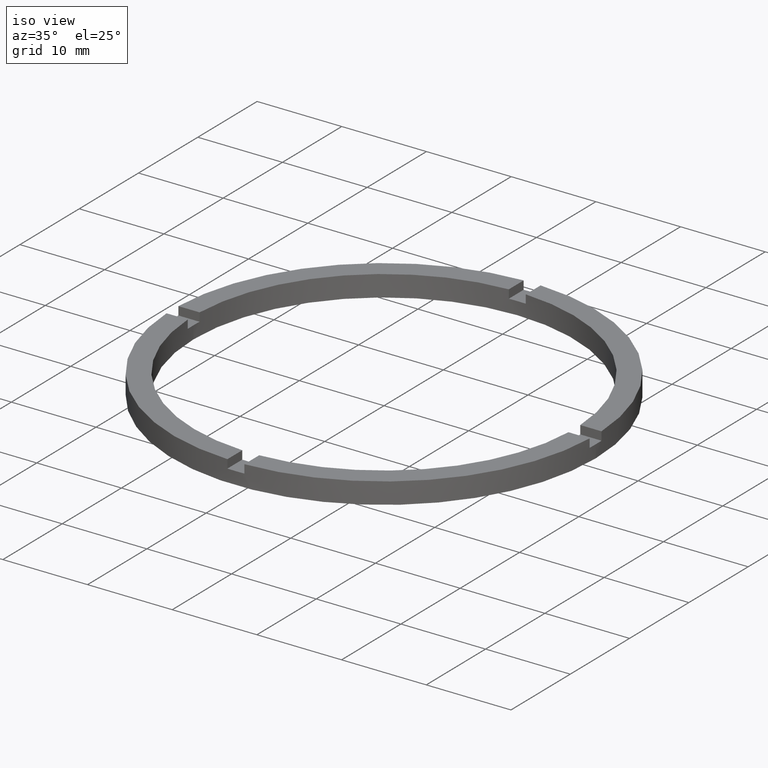
[diagram: clean part render]
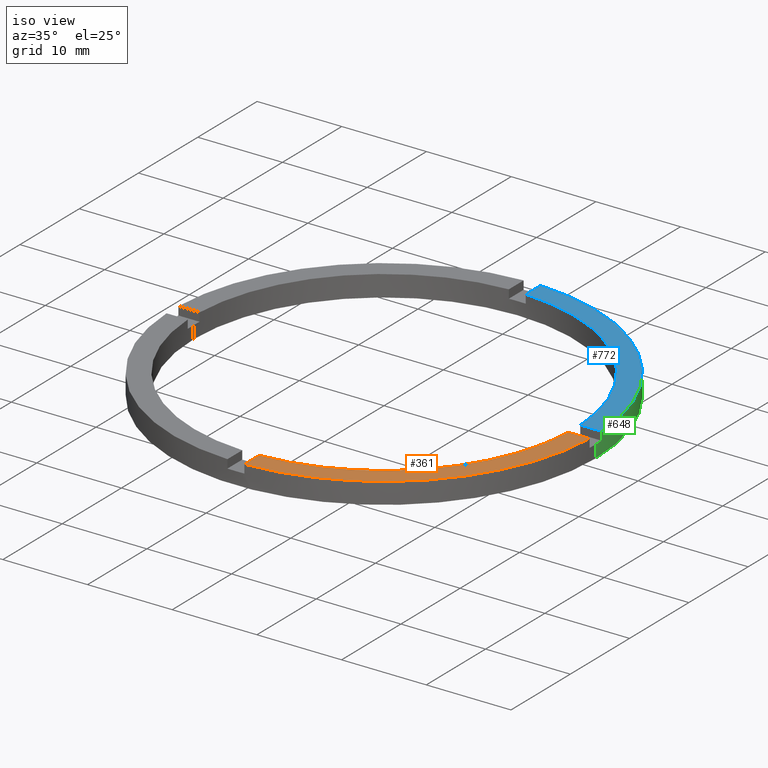
[diagram: same view with three faces highlighted in distinct colors, each labeled with its STEP entity id]
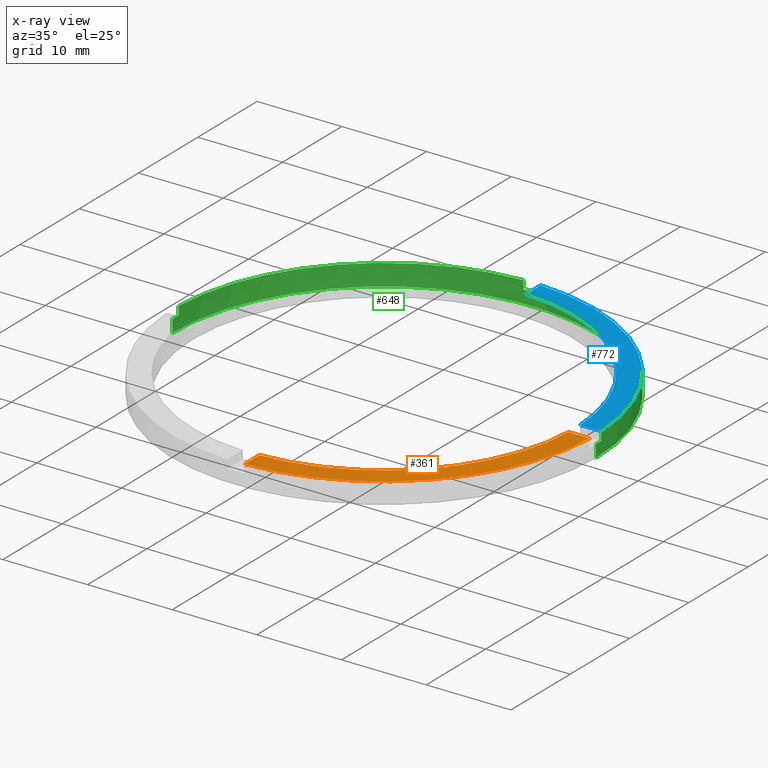
[diagram: x-ray of the same camera — body ghosted, the three highlighted faces saturated]
A machine part, iso view with three faces highlighted in distinct colors.
The next image is the same camera in x-ray (body ghosted, the three faces saturated) — at least one of them is partly hidden behind the body in this view.
Their STEP definitions:

[orange] entity #361 — the highlighted planar face has unit normal (0, 0, 1).
#4 = EDGE_CURVE ( 'NONE', #275, #313, #141, .T. ) ;
#17 = ORIENTED_EDGE ( 'NONE', *, *, #535, .T. ) ;
#25 = EDGE_LOOP ( 'NONE', ( #720, #468, #761, #17 ) ) ;
#80 = AXIS2_PLACEMENT_3D ( 'NONE', #592, #777, #339 ) ;
#129 = CARTESIAN_POINT ( 'NONE',  ( 0.000000000000000000, 0.000000000000000000, 2.500000000000000000 ) ) ;
#141 = LINE ( 'NONE', #577, #660 ) ;
#177 = VERTEX_POINT ( 'NONE', #522 ) ;
#183 = VECTOR ( 'NONE', #382, 1000.000000000000000 ) ;
#187 = CIRCLE ( 'NONE', #80, 22.50000000000000355 ) ;
#215 = FACE_OUTER_BOUND ( 'NONE', #25, .T. ) ;
#245 = PLANE ( 'NONE',  #638 ) ;
#275 = VERTEX_POINT ( 'NONE', #710 ) ;
#281 = DIRECTION ( 'NONE',  ( 1.000000000000000000, 0.000000000000000000, 0.000000000000000000 ) ) ;
#308 = DIRECTION ( 'NONE',  ( 1.000000000000000000, 0.000000000000000000, -0.000000000000000000 ) ) ;
#313 = VERTEX_POINT ( 'NONE', #736 ) ;
#339 = DIRECTION ( 'NONE',  ( 1.000000000000000000, 0.000000000000000000, 0.000000000000000000 ) ) ;
#360 = DIRECTION ( 'NONE',  ( 0.000000000000000000, 0.000000000000000000, 1.000000000000000000 ) ) ;
#361 = ADVANCED_FACE ( 'NONE', ( #215 ), #245, .T. ) ;
#368 = CARTESIAN_POINT ( 'NONE',  ( 22.47776679298901925, -1.000000000000157652, 2.500000000000000000 ) ) ;
#382 = DIRECTION ( 'NONE',  ( 1.000000000000000000, 4.336808689942018352E-17, 0.000000000000000000 ) ) ;
#461 = DIRECTION ( 'NONE',  ( 0.000000000000000000, 0.000000000000000000, 1.000000000000000000 ) ) ;
#468 = ORIENTED_EDGE ( 'NONE', *, *, #580, .F. ) ;
#512 = EDGE_CURVE ( 'NONE', #762, #177, #703, .T. ) ;
#522 = CARTESIAN_POINT ( 'NONE',  ( 24.97999199359358968, -1.000000000000157430, 2.500000000000000000 ) ) ;
#530 = CARTESIAN_POINT ( 'NONE',  ( 14.99999999999999645, -1.000000000000157874, 2.500000000000000000 ) ) ;
#535 = EDGE_CURVE ( 'NONE', #275, #177, #730, .T. ) ;
#577 = CARTESIAN_POINT ( 'NONE',  ( 0.9999999999998382405, -15.00000000000018119, 2.500000000000000000 ) ) ;
#580 = EDGE_CURVE ( 'NONE', #313, #762, #187, .T. ) ;
#592 = CARTESIAN_POINT ( 'NONE',  ( 0.000000000000000000, 0.000000000000000000, 2.500000000000000000 ) ) ;
#620 = DIRECTION ( 'NONE',  ( -1.301042606982605321E-16, 1.000000000000000000, -0.000000000000000000 ) ) ;
#637 = CARTESIAN_POINT ( 'NONE',  ( 0.000000000000000000, 0.000000000000000000, 2.500000000000000000 ) ) ;
#638 = AXIS2_PLACEMENT_3D ( 'NONE', #129, #360, #308 ) ;
#660 = VECTOR ( 'NONE', #620, 1000.000000000000000 ) ;
#703 = LINE ( 'NONE', #530, #183 ) ;
#710 = CARTESIAN_POINT ( 'NONE',  ( 0.9999999999998395728, -24.97999199359360034, 2.500000000000000000 ) ) ;
#720 = ORIENTED_EDGE ( 'NONE', *, *, #512, .F. ) ;
#730 = CIRCLE ( 'NONE', #778, 25.00000000000000000 ) ;
#736 = CARTESIAN_POINT ( 'NONE',  ( 0.9999999999998391287, -22.47776679298903346, 2.500000000000000000 ) ) ;
#761 = ORIENTED_EDGE ( 'NONE', *, *, #4, .F. ) ;
#762 = VERTEX_POINT ( 'NONE', #368 ) ;
#777 = DIRECTION ( 'NONE',  ( 0.000000000000000000, 0.000000000000000000, 1.000000000000000000 ) ) ;
#778 = AXIS2_PLACEMENT_3D ( 'NONE', #637, #461, #281 ) ;

[blue] entity #772 — the highlighted planar face has unit normal (0, 0, 1).
#16 = PLANE ( 'NONE',  #494 ) ;
#31 = AXIS2_PLACEMENT_3D ( 'NONE', #104, #150, #291 ) ;
#33 = FACE_OUTER_BOUND ( 'NONE', #537, .T. ) ;
#88 = CARTESIAN_POINT ( 'NONE',  ( 22.47776679298903346, 0.9999999999998423483, 2.500000000000000000 ) ) ;
#95 = DIRECTION ( 'NONE',  ( 0.000000000000000000, 1.000000000000000000, 0.000000000000000000 ) ) ;
#103 = EDGE_CURVE ( 'NONE', #769, #491, #394, .T. ) ;
#104 = CARTESIAN_POINT ( 'NONE',  ( 0.000000000000000000, 0.000000000000000000, 2.500000000000000000 ) ) ;
#120 = CARTESIAN_POINT ( 'NONE',  ( 0.9999999999999740208, 15.00000000000000178, 2.500000000000000000 ) ) ;
#128 = DIRECTION ( 'NONE',  ( 1.000000000000000000, 0.000000000000000000, -0.000000000000000000 ) ) ;
#150 = DIRECTION ( 'NONE',  ( 0.000000000000000000, 0.000000000000000000, 1.000000000000000000 ) ) ;
#200 = CARTESIAN_POINT ( 'NONE',  ( 0.000000000000000000, 0.000000000000000000, 2.500000000000000000 ) ) ;
#203 = LINE ( 'NONE', #120, #733 ) ;
#208 = CIRCLE ( 'NONE', #31, 25.00000000000000000 ) ;
#217 = ORIENTED_EDGE ( 'NONE', *, *, #609, .F. ) ;
#246 = DIRECTION ( 'NONE',  ( 0.000000000000000000, 0.000000000000000000, 1.000000000000000000 ) ) ;
#255 = VERTEX_POINT ( 'NONE', #479 ) ;
#268 = ORIENTED_EDGE ( 'NONE', *, *, #103, .F. ) ;
#291 = DIRECTION ( 'NONE',  ( 1.000000000000000000, 0.000000000000000000, 0.000000000000000000 ) ) ;
#302 = CARTESIAN_POINT ( 'NONE',  ( 0.000000000000000000, 0.000000000000000000, 2.500000000000000000 ) ) ;
#311 = DIRECTION ( 'NONE',  ( 1.000000000000000000, 0.000000000000000000, 0.000000000000000000 ) ) ;
#327 = DIRECTION ( 'NONE',  ( -1.000000000000000000, -4.336808689942018352E-17, -0.000000000000000000 ) ) ;
#362 = DIRECTION ( 'NONE',  ( 0.000000000000000000, 0.000000000000000000, 1.000000000000000000 ) ) ;
#379 = CARTESIAN_POINT ( 'NONE',  ( 24.97999199359360034, 0.9999999999998425704, 2.500000000000000000 ) ) ;
#394 = CIRCLE ( 'NONE', #415, 22.50000000000000355 ) ;
#415 = AXIS2_PLACEMENT_3D ( 'NONE', #302, #246, #311 ) ;
#439 = ORIENTED_EDGE ( 'NONE', *, *, #499, .T. ) ;
#448 = VECTOR ( 'NONE', #327, 1000.000000000000000 ) ;
#479 = CARTESIAN_POINT ( 'NONE',  ( 0.9999999999999740208, 24.97999199359359679, 2.500000000000000000 ) ) ;
#491 = VERTEX_POINT ( 'NONE', #599 ) ;
#494 = AXIS2_PLACEMENT_3D ( 'NONE', #200, #362, #128 ) ;
#499 = EDGE_CURVE ( 'NONE', #517, #255, #208, .T. ) ;
#517 = VERTEX_POINT ( 'NONE', #379 ) ;
#537 = EDGE_LOOP ( 'NONE', ( #629, #268, #217, #439 ) ) ;
#599 = CARTESIAN_POINT ( 'NONE',  ( 0.9999999999999740208, 22.47776679298902636, 2.500000000000000000 ) ) ;
#609 = EDGE_CURVE ( 'NONE', #517, #769, #721, .T. ) ;
#624 = EDGE_CURVE ( 'NONE', #491, #255, #203, .T. ) ;
#629 = ORIENTED_EDGE ( 'NONE', *, *, #624, .F. ) ;
#646 = CARTESIAN_POINT ( 'NONE',  ( 14.99999999999999645, 0.9999999999998421263, 2.500000000000000000 ) ) ;
#721 = LINE ( 'NONE', #646, #448 ) ;
#733 = VECTOR ( 'NONE', #95, 1000.000000000000000 ) ;
#769 = VERTEX_POINT ( 'NONE', #88 ) ;
#772 = ADVANCED_FACE ( 'NONE', ( #33 ), #16, .T. ) ;

[green] entity #648 — the highlighted cylindrical surface (partial cylindrical patch) has radius 25 mm, axis along (-0, -0, -1).
#2 = ORIENTED_EDGE ( 'NONE', *, *, #499, .F. ) ;
#8 = CARTESIAN_POINT ( 'NONE',  ( 0.000000000000000000, 0.000000000000000000, 1.500000000000000000 ) ) ;
#19 = VERTEX_POINT ( 'NONE', #697 ) ;
#31 = AXIS2_PLACEMENT_3D ( 'NONE', #104, #150, #291 ) ;
#39 = AXIS2_PLACEMENT_3D ( 'NONE', #406, #619, #551 ) ;
#46 = AXIS2_PLACEMENT_3D ( 'NONE', #97, #134, #376 ) ;
#74 = CARTESIAN_POINT ( 'NONE',  ( -25.00000000000000000, 0.000000000000000000, 2.500000000000000000 ) ) ;
#76 = DIRECTION ( 'NONE',  ( 1.000000000000000000, 0.000000000000000000, 0.000000000000000000 ) ) ;
#77 = DIRECTION ( 'NONE',  ( 1.000000000000000000, 0.000000000000000000, 0.000000000000000000 ) ) ;
#79 = DIRECTION ( 'NONE',  ( -0.000000000000000000, -0.000000000000000000, -1.000000000000000000 ) ) ;
#83 = CARTESIAN_POINT ( 'NONE',  ( -24.97999199359359679, 0.9999999999999740208, 1.500000000000000000 ) ) ;
#91 = EDGE_CURVE ( 'NONE', #682, #757, #671, .T. ) ;
#97 = CARTESIAN_POINT ( 'NONE',  ( 0.000000000000000000, 0.000000000000000000, 1.500000000000000000 ) ) ;
#101 = DIRECTION ( 'NONE',  ( -0.000000000000000000, -0.000000000000000000, -1.000000000000000000 ) ) ;
#104 = CARTESIAN_POINT ( 'NONE',  ( 0.000000000000000000, 0.000000000000000000, 2.500000000000000000 ) ) ;
#111 = EDGE_CURVE ( 'NONE', #490, #497, #163, .T. ) ;
#112 = ORIENTED_EDGE ( 'NONE', *, *, #536, .T. ) ;
#121 = DIRECTION ( 'NONE',  ( 1.000000000000000000, 0.000000000000000000, 0.000000000000000000 ) ) ;
#125 = CARTESIAN_POINT ( 'NONE',  ( 25.00000000000000000, 3.061616997868383043E-15, 2.500000000000000000 ) ) ;
#127 = EDGE_CURVE ( 'NONE', #527, #272, #419, .T. ) ;
#134 = DIRECTION ( 'NONE',  ( 0.000000000000000000, 0.000000000000000000, 1.000000000000000000 ) ) ;
#139 = CARTESIAN_POINT ( 'NONE',  ( -24.97999199359359679, 0.9999999999999740208, 2.500000000000000000 ) ) ;
#142 = DIRECTION ( 'NONE',  ( 0.000000000000000000, 0.000000000000000000, 1.000000000000000000 ) ) ;
#150 = DIRECTION ( 'NONE',  ( 0.000000000000000000, 0.000000000000000000, 1.000000000000000000 ) ) ;
#156 = CARTESIAN_POINT ( 'NONE',  ( 0.9999999999999740208, 24.97999199359359679, 2.500000000000000000 ) ) ;
#160 = CARTESIAN_POINT ( 'NONE',  ( 25.00000000000000000, 3.061616997868383043E-15, 0.000000000000000000 ) ) ;
#163 = LINE ( 'NONE', #168, #414 ) ;
#164 = VERTEX_POINT ( 'NONE', #160 ) ;
#168 = CARTESIAN_POINT ( 'NONE',  ( -1.000000000000025979, 24.97999199359359679, 2.500000000000000000 ) ) ;
#171 = ORIENTED_EDGE ( 'NONE', *, *, #542, .T. ) ;
#174 = AXIS2_PLACEMENT_3D ( 'NONE', #8, #714, #77 ) ;
#181 = VECTOR ( 'NONE', #101, 1000.000000000000000 ) ;
#190 = CARTESIAN_POINT ( 'NONE',  ( 24.97999199359360034, 0.9999999999998425704, 1.500000000000000000 ) ) ;
#195 = VECTOR ( 'NONE', #387, 1000.000000000000000 ) ;
#198 = VECTOR ( 'NONE', #142, 1000.000000000000000 ) ;
#199 = CIRCLE ( 'NONE', #344, 25.00000000000000000 ) ;
#208 = CIRCLE ( 'NONE', #31, 25.00000000000000000 ) ;
#222 = EDGE_CURVE ( 'NONE', #490, #783, #425, .T. ) ;
#243 = ORIENTED_EDGE ( 'NONE', *, *, #350, .T. ) ;
#249 = DIRECTION ( 'NONE',  ( -0.000000000000000000, -0.000000000000000000, -1.000000000000000000 ) ) ;
#252 = ORIENTED_EDGE ( 'NONE', *, *, #127, .F. ) ;
#255 = VERTEX_POINT ( 'NONE', #479 ) ;
#258 = CARTESIAN_POINT ( 'NONE',  ( -25.00000000000000000, 0.000000000000000000, 1.500000000000000000 ) ) ;
#261 = ORIENTED_EDGE ( 'NONE', *, *, #615, .T. ) ;
#265 = CARTESIAN_POINT ( 'NONE',  ( -24.97999199359359679, 0.9999999999999740208, 2.500000000000000000 ) ) ;
#272 = VERTEX_POINT ( 'NONE', #190 ) ;
#285 = EDGE_CURVE ( 'NONE', #757, #509, #464, .T. ) ;
#291 = DIRECTION ( 'NONE',  ( 1.000000000000000000, 0.000000000000000000, 0.000000000000000000 ) ) ;
#297 = EDGE_CURVE ( 'NONE', #19, #255, #741, .T. ) ;
#307 = ORIENTED_EDGE ( 'NONE', *, *, #285, .F. ) ;
#318 = CYLINDRICAL_SURFACE ( 'NONE', #39, 25.00000000000000000 ) ;
#321 = DIRECTION ( 'NONE',  ( 1.000000000000000000, 0.000000000000000000, 0.000000000000000000 ) ) ;
#336 = ORIENTED_EDGE ( 'NONE', *, *, #91, .F. ) ;
#341 = CARTESIAN_POINT ( 'NONE',  ( -25.00000000000000000, 0.000000000000000000, 0.000000000000000000 ) ) ;
#344 = AXIS2_PLACEMENT_3D ( 'NONE', #635, #695, #121 ) ;
#350 = EDGE_CURVE ( 'NONE', #164, #509, #738, .T. ) ;
#376 = DIRECTION ( 'NONE',  ( 1.000000000000000000, 0.000000000000000000, 0.000000000000000000 ) ) ;
#379 = CARTESIAN_POINT ( 'NONE',  ( 24.97999199359360034, 0.9999999999998425704, 2.500000000000000000 ) ) ;
#383 = DIRECTION ( 'NONE',  ( 0.000000000000000000, 0.000000000000000000, 1.000000000000000000 ) ) ;
#387 = DIRECTION ( 'NONE',  ( 0.000000000000000000, 0.000000000000000000, 1.000000000000000000 ) ) ;
#406 = CARTESIAN_POINT ( 'NONE',  ( 0.000000000000000000, 0.000000000000000000, 2.500000000000000000 ) ) ;
#414 = VECTOR ( 'NONE', #604, 1000.000000000000000 ) ;
#419 = CIRCLE ( 'NONE', #174, 25.00000000000000000 ) ;
#425 = CIRCLE ( 'NONE', #771, 25.00000000000000000 ) ;
#445 = LINE ( 'NONE', #685, #181 ) ;
#457 = LINE ( 'NONE', #125, #732 ) ;
#460 = VECTOR ( 'NONE', #249, 1000.000000000000000 ) ;
#464 = LINE ( 'NONE', #74, #460 ) ;
#479 = CARTESIAN_POINT ( 'NONE',  ( 0.9999999999999740208, 24.97999199359359679, 2.500000000000000000 ) ) ;
#490 = VERTEX_POINT ( 'NONE', #640 ) ;
#497 = VERTEX_POINT ( 'NONE', #782 ) ;
#499 = EDGE_CURVE ( 'NONE', #517, #255, #208, .T. ) ;
#509 = VERTEX_POINT ( 'NONE', #341 ) ;
#510 = AXIS2_PLACEMENT_3D ( 'NONE', #752, #572, #321 ) ;
#513 = ORIENTED_EDGE ( 'NONE', *, *, #111, .T. ) ;
#517 = VERTEX_POINT ( 'NONE', #379 ) ;
#527 = VERTEX_POINT ( 'NONE', #538 ) ;
#536 = EDGE_CURVE ( 'NONE', #517, #272, #445, .T. ) ;
#538 = CARTESIAN_POINT ( 'NONE',  ( 25.00000000000000000, 3.061616997868383043E-15, 1.500000000000000000 ) ) ;
#542 = EDGE_CURVE ( 'NONE', #682, #783, #724, .T. ) ;
#551 = DIRECTION ( 'NONE',  ( -1.000000000000000000, 0.000000000000000000, 0.000000000000000000 ) ) ;
#563 = FACE_OUTER_BOUND ( 'NONE', #718, .T. ) ;
#572 = DIRECTION ( 'NONE',  ( 0.000000000000000000, 0.000000000000000000, 1.000000000000000000 ) ) ;
#582 = EDGE_CURVE ( 'NONE', #19, #497, #199, .T. ) ;
#594 = CARTESIAN_POINT ( 'NONE',  ( 0.000000000000000000, 0.000000000000000000, 2.500000000000000000 ) ) ;
#604 = DIRECTION ( 'NONE',  ( -0.000000000000000000, -0.000000000000000000, -1.000000000000000000 ) ) ;
#615 = EDGE_CURVE ( 'NONE', #527, #164, #457, .T. ) ;
#619 = DIRECTION ( 'NONE',  ( -0.000000000000000000, -0.000000000000000000, -1.000000000000000000 ) ) ;
#631 = ORIENTED_EDGE ( 'NONE', *, *, #222, .F. ) ;
#635 = CARTESIAN_POINT ( 'NONE',  ( 0.000000000000000000, 0.000000000000000000, 1.500000000000000000 ) ) ;
#640 = CARTESIAN_POINT ( 'NONE',  ( -1.000000000000025979, 24.97999199359359679, 2.500000000000000000 ) ) ;
#648 = ADVANCED_FACE ( 'NONE', ( #563 ), #318, .T. ) ;
#671 = CIRCLE ( 'NONE', #46, 25.00000000000000000 ) ;
#682 = VERTEX_POINT ( 'NONE', #83 ) ;
#685 = CARTESIAN_POINT ( 'NONE',  ( 24.97999199359360034, 0.9999999999998425704, 2.500000000000000000 ) ) ;
#695 = DIRECTION ( 'NONE',  ( 0.000000000000000000, -0.000000000000000000, 1.000000000000000000 ) ) ;
#697 = CARTESIAN_POINT ( 'NONE',  ( 0.9999999999999740208, 24.97999199359359679, 1.500000000000000000 ) ) ;
#702 = ORIENTED_EDGE ( 'NONE', *, *, #297, .T. ) ;
#714 = DIRECTION ( 'NONE',  ( 0.000000000000000000, 0.000000000000000000, 1.000000000000000000 ) ) ;
#718 = EDGE_LOOP ( 'NONE', ( #252, #261, #243, #307, #336, #171, #631, #513, #753, #702, #2, #112 ) ) ;
#724 = LINE ( 'NONE', #139, #198 ) ;
#732 = VECTOR ( 'NONE', #79, 1000.000000000000000 ) ;
#738 = CIRCLE ( 'NONE', #510, 25.00000000000000000 ) ;
#741 = LINE ( 'NONE', #156, #195 ) ;
#752 = CARTESIAN_POINT ( 'NONE',  ( 0.000000000000000000, 0.000000000000000000, 0.000000000000000000 ) ) ;
#753 = ORIENTED_EDGE ( 'NONE', *, *, #582, .F. ) ;
#757 = VERTEX_POINT ( 'NONE', #258 ) ;
#771 = AXIS2_PLACEMENT_3D ( 'NONE', #594, #383, #76 ) ;
#782 = CARTESIAN_POINT ( 'NONE',  ( -1.000000000000025979, 24.97999199359359679, 1.500000000000000000 ) ) ;
#783 = VERTEX_POINT ( 'NONE', #265 ) ;